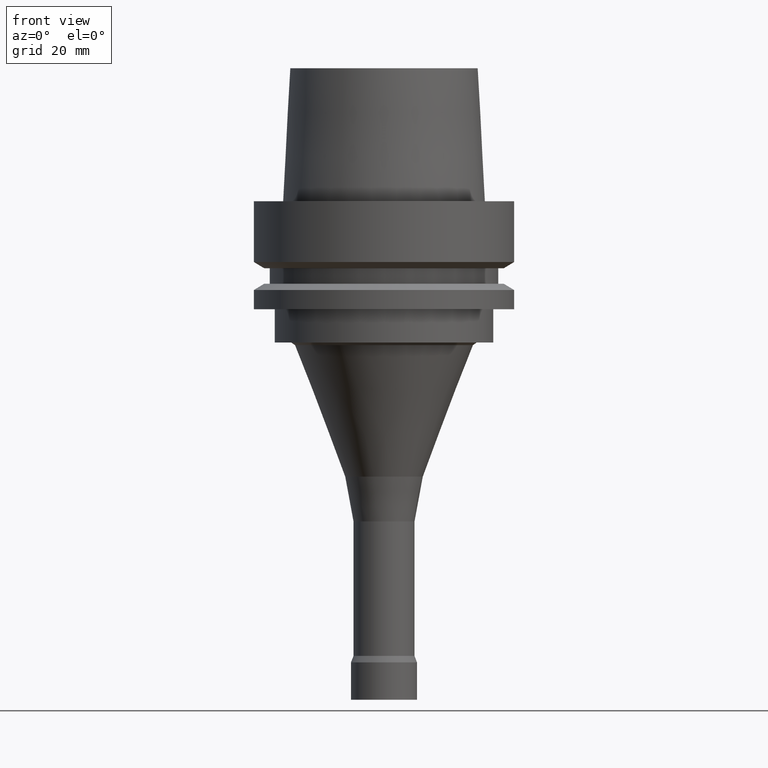
[diagram: clean part render]
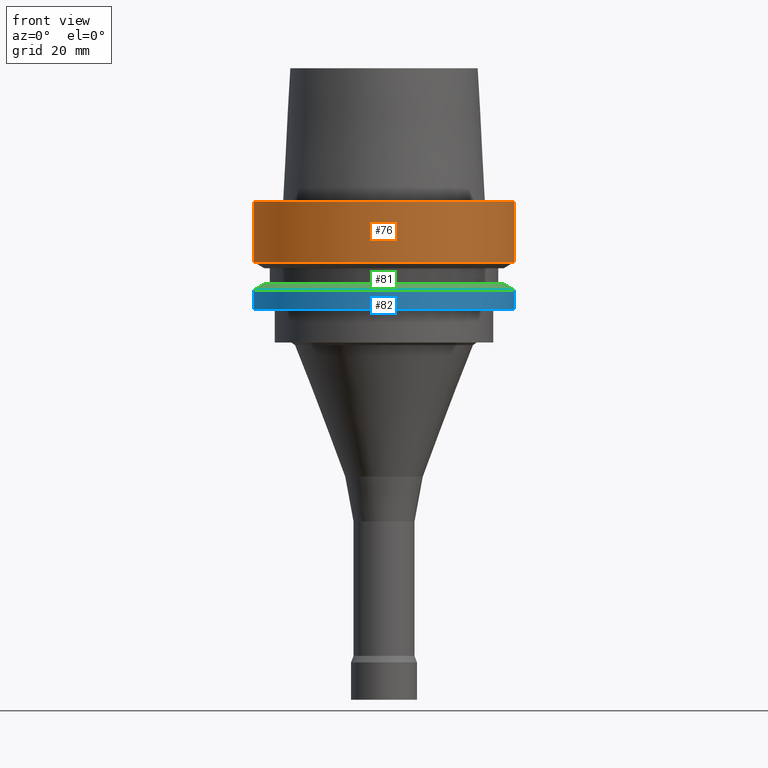
[diagram: same view with three faces highlighted in distinct colors, each labeled with its STEP entity id]
A machine part, front view with three faces highlighted in distinct colors.
Their STEP definitions:

[orange] entity #76 — the highlighted cylindrical surface (bore or boss wall) has radius 31.5 mm, axis along (-0, -0, 1).
#76=ADVANCED_FACE('',(#99,#100),#101,.T.);
#99=FACE_BOUND('',#157,.T.);
#100=FACE_BOUND('',#158,.T.);
#101=CYLINDRICAL_SURFACE('',#159,31.5);
#157=EDGE_LOOP('',(#217));
#158=EDGE_LOOP('',(#218));
#159=AXIS2_PLACEMENT_3D('',#219,#220,#221);
#217=ORIENTED_EDGE('',*,*,#312,.F.);
#218=ORIENTED_EDGE('',*,*,#310,.T.);
#219=CARTESIAN_POINT('',(4.47684973986342E-016,8.95369947972684E-016,-7.311250465));
#220=DIRECTION('',(-6.12323399573677E-017,-1.22464679914735E-016,1.0));
#221=DIRECTION('',(-1.23259516440783E-032,1.0,1.22464679914735E-016));
#310=EDGE_CURVE('',#329,#329,#330,.T.);
#312=EDGE_CURVE('',#333,#333,#334,.T.);
#329=VERTEX_POINT('',#367);
#330=CIRCLE('',#368,31.5);
#333=VERTEX_POINT('',#371);
#334=CIRCLE('',#372,31.5);
#367=CARTESIAN_POINT('',(-3.8214424279273E-031,31.5,3.75763741731416E-015));
#368=AXIS2_PLACEMENT_3D('',#405,#406,#407);
#371=CARTESIAN_POINT('',(8.95369947972684E-016,31.5,-14.62250093));
#372=AXIS2_PLACEMENT_3D('',#411,#412,#413);
#405=CARTESIAN_POINT('',(6.12323399573677E-033,1.22464679914735E-032,-1.0E-016));
#406=DIRECTION('',(6.12323399573677E-017,1.22464679914735E-016,-1.0));
#407=DIRECTION('',(-1.23259516440783E-032,1.0,1.22464679914735E-016));
#411=CARTESIAN_POINT('',(8.95369947972685E-016,1.79073989594537E-015,-14.62250093));
#412=DIRECTION('',(6.12323399573677E-017,1.22464679914735E-016,-1.0));
#413=DIRECTION('',(-1.23259516440783E-032,1.0,1.22464679914735E-016));

[blue] entity #82 — the highlighted cylindrical surface (bore or boss wall) has radius 31.5 mm, axis along (-0, -0, 1).
#82=ADVANCED_FACE('',(#117,#118),#119,.T.);
#117=FACE_BOUND('',#175,.T.);
#118=FACE_BOUND('',#176,.T.);
#119=CYLINDRICAL_SURFACE('',#177,31.5);
#175=EDGE_LOOP('',(#247));
#176=EDGE_LOOP('',(#248));
#177=AXIS2_PLACEMENT_3D('',#249,#250,#251);
#247=ORIENTED_EDGE('',*,*,#318,.F.);
#248=ORIENTED_EDGE('',*,*,#317,.T.);
#249=CARTESIAN_POINT('',(1.45051756469206E-015,2.90103512938411E-015,-23.688749535));
#250=DIRECTION('',(-6.12323399573677E-017,-1.22464679914735E-016,1.0));
#251=DIRECTION('',(-1.23259516440783E-032,1.0,1.22464679914735E-016));
#317=EDGE_CURVE('',#343,#343,#344,.T.);
#318=EDGE_CURVE('',#345,#345,#346,.T.);
#343=VERTEX_POINT('',#381);
#344=CIRCLE('',#382,31.5);
#345=VERTEX_POINT('',#383);
#346=CIRCLE('',#384,31.5);
#381=CARTESIAN_POINT('',(1.30899429049255E-015,31.5,-21.37749907));
#382=AXIS2_PLACEMENT_3D('',#426,#427,#428);
#383=CARTESIAN_POINT('',(1.59204083889156E-015,31.5,-26.0));
#384=AXIS2_PLACEMENT_3D('',#429,#430,#431);
#426=CARTESIAN_POINT('',(1.30899429049255E-015,2.6179885809851E-015,-21.37749907));
#427=DIRECTION('',(6.12323399573677E-017,1.22464679914735E-016,-1.0));
#428=DIRECTION('',(-1.23259516440783E-032,1.0,1.22464679914735E-016));
#429=CARTESIAN_POINT('',(1.59204083889156E-015,3.18408167778312E-015,-26.0));
#430=DIRECTION('',(6.12323399573677E-017,1.22464679914735E-016,-1.0));
#431=DIRECTION('',(-1.23259516440783E-032,1.0,1.22464679914735E-016));

[green] entity #81 — the highlighted conical surface has half-angle 60 deg.
#81=ADVANCED_FACE('',(#114,#115),#116,.T.);
#114=FACE_BOUND('',#172,.T.);
#115=FACE_BOUND('',#173,.T.);
#116=CONICAL_SURFACE('',#174,30.19879763,1.04719755326565);
#172=EDGE_LOOP('',(#242));
#173=EDGE_LOOP('',(#243));
#174=AXIS2_PLACEMENT_3D('',#244,#245,#246);
#242=ORIENTED_EDGE('',*,*,#317,.F.);
#243=ORIENTED_EDGE('',*,*,#316,.T.);
#244=CARTESIAN_POINT('',(1.26299352357262E-015,2.52598704714523E-015,-20.626249535));
#245=DIRECTION('',(6.12323399573677E-017,1.22464679914735E-016,-1.0));
#246=DIRECTION('',(-1.23259516440783E-032,1.0,1.22464679914735E-016));
#316=EDGE_CURVE('',#341,#341,#342,.T.);
#317=EDGE_CURVE('',#343,#343,#344,.T.);
#341=VERTEX_POINT('',#379);
#342=CIRCLE('',#380,28.89759526);
#343=VERTEX_POINT('',#381);
#344=CIRCLE('',#382,31.5);
#379=CARTESIAN_POINT('',(1.21699275665268E-015,28.89759526,-19.875));
#380=AXIS2_PLACEMENT_3D('',#423,#424,#425);
#381=CARTESIAN_POINT('',(1.30899429049255E-015,31.5,-21.37749907));
#382=AXIS2_PLACEMENT_3D('',#426,#427,#428);
#423=CARTESIAN_POINT('',(1.21699275665268E-015,2.43398551330536E-015,-19.875));
#424=DIRECTION('',(6.12323399573677E-017,1.22464679914735E-016,-1.0));
#425=DIRECTION('',(-1.23259516440783E-032,1.0,1.22464679914735E-016));
#426=CARTESIAN_POINT('',(1.30899429049255E-015,2.6179885809851E-015,-21.37749907));
#427=DIRECTION('',(6.12323399573677E-017,1.22464679914735E-016,-1.0));
#428=DIRECTION('',(-1.23259516440783E-032,1.0,1.22464679914735E-016));